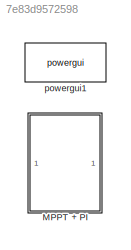
MODEL slx_7e83d9572598
KIND model
CONFIG AbsTol = auto
CONFIG EnableMultiTasking = off
CONFIG FixedStep = (1/150000)/100
CONFIG MaxStep = auto
CONFIG MinStep = auto
CONFIG RelTol = 1e-3
CONFIG SampleTimeConstraint = Unconstrained
CONFIG SolverName = FixedStepDiscrete
CONFIG StartTime = 0
CONFIG StopTime = 0.2
WORKSPACE source: mxarray member
WORKSPACE Var = 20
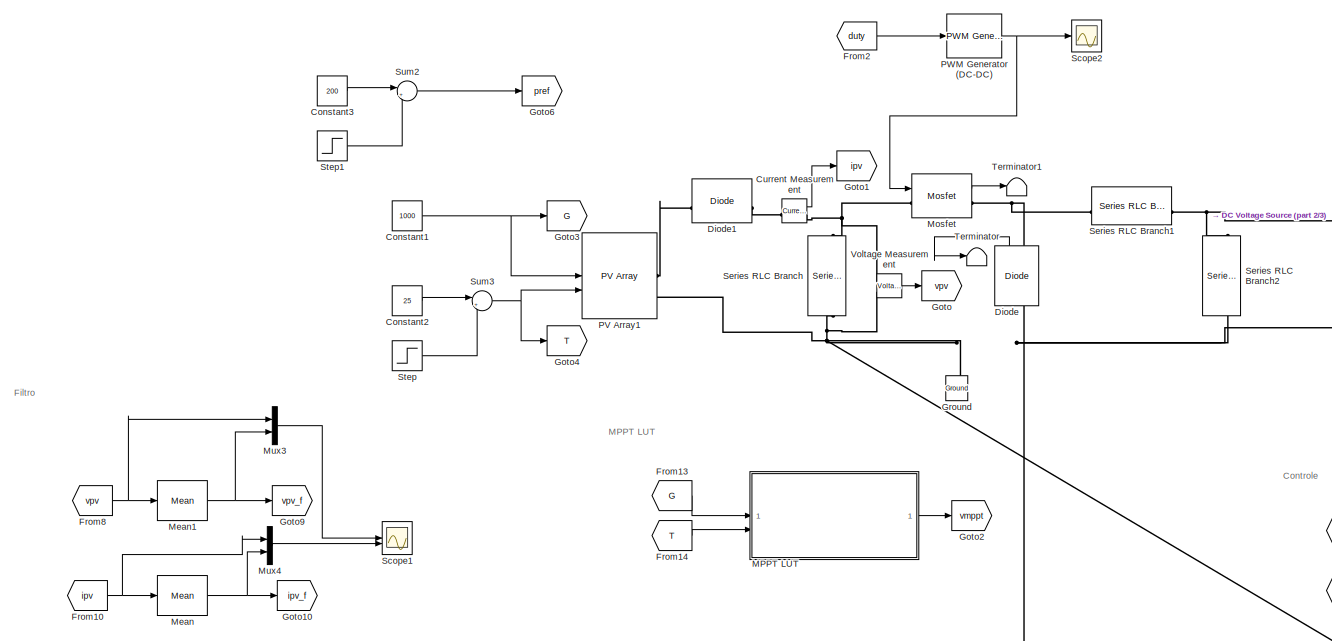
[diagram: MPPT + PI - part 1/3, full width, middle band]
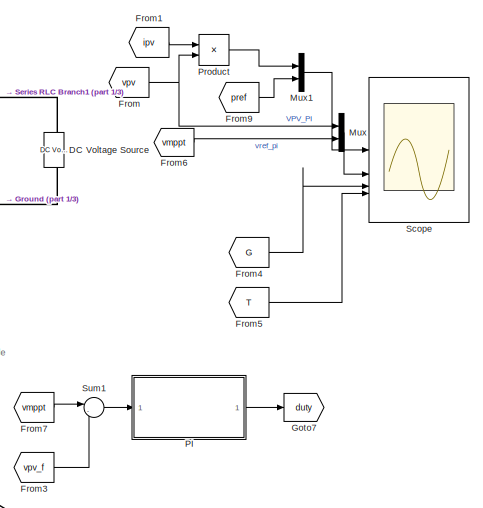
[diagram: MPPT + PI - part 2/3, middle right region]
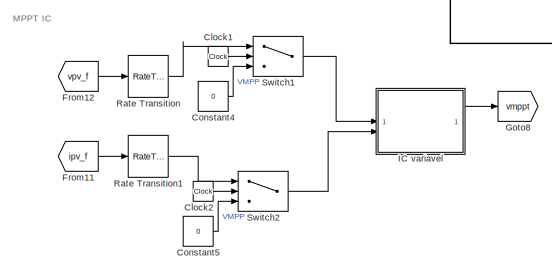
[diagram: MPPT + PI - part 3/3, bottom center region]
BLOCK [SubSystem] MPPT + PI
BLOCK [Clock] MPPT + PI/Clock1
BLOCK [Clock] MPPT + PI/Clock2
BLOCK [Constant] MPPT + PI/Constant1
  Value = 1000
BLOCK [Constant] MPPT + PI/Constant2
  Value = 25
BLOCK [Constant] MPPT + PI/Constant3
  Value = 200
BLOCK [Constant] MPPT + PI/Constant4
  Value = 0
BLOCK [Constant] MPPT + PI/Constant5
  Value = 0
BLOCK [Reference] MPPT + PI/Current Measurement  REF=spsCurrentMeasurementLib/Current Measurement
  SourceBlock = spsCurrentMeasurementLib/Current Measurement
  SourceType = Current Measurement
  UserDataPersistent = on
BLOCK [Reference] MPPT + PI/DC Voltage Source  REF=spsDCVoltageSourceLib/DC Voltage Source
  SourceBlock = spsDCVoltageSourceLib/DC Voltage Source
  SourceType = DC Voltage Source
BLOCK [Reference] MPPT + PI/Diode  REF=spsDiodeLib/Diode
  NameLocation = right
  SourceBlock = spsDiodeLib/Diode
  SourceType = Diode
BLOCK [Reference] MPPT + PI/Diode1  REF=spsDiodeLib/Diode
  SourceBlock = spsDiodeLib/Diode
  SourceType = Diode
BLOCK [From] MPPT + PI/From
  GotoTag = vpv
BLOCK [From] MPPT + PI/From1
  GotoTag = ipv
BLOCK [From] MPPT + PI/From10
  GotoTag = ipv
BLOCK [From] MPPT + PI/From11
  GotoTag = ipv_f
BLOCK [From] MPPT + PI/From12
  GotoTag = vpv_f
BLOCK [From] MPPT + PI/From13
  Commented = on
  GotoTag = G
BLOCK [From] MPPT + PI/From14
  Commented = on
  GotoTag = T
BLOCK [From] MPPT + PI/From2
  GotoTag = duty
BLOCK [From] MPPT + PI/From3
  GotoTag = vpv_f
BLOCK [From] MPPT + PI/From4
  GotoTag = G
BLOCK [From] MPPT + PI/From5
  GotoTag = T
BLOCK [From] MPPT + PI/From6
  GotoTag = vmppt
BLOCK [From] MPPT + PI/From7
  GotoTag = vmppt
BLOCK [From] MPPT + PI/From8
  GotoTag = vpv
BLOCK [From] MPPT + PI/From9
  GotoTag = pref
BLOCK [Goto] MPPT + PI/Goto
  GotoTag = vpv
BLOCK [Goto] MPPT + PI/Goto1
  GotoTag = ipv
BLOCK [Goto] MPPT + PI/Goto10
  GotoTag = ipv_f
BLOCK [Goto] MPPT + PI/Goto2
  Commented = on
  GotoTag = vmppt
BLOCK [Goto] MPPT + PI/Goto3
  GotoTag = G
BLOCK [Goto] MPPT + PI/Goto4
  GotoTag = T
BLOCK [Goto] MPPT + PI/Goto6
  GotoTag = pref
BLOCK [Goto] MPPT + PI/Goto7
  GotoTag = duty
BLOCK [Goto] MPPT + PI/Goto8
  GotoTag = vmppt
BLOCK [Goto] MPPT + PI/Goto9
  GotoTag = vpv_f
BLOCK [Reference] MPPT + PI/Ground  REF=spsGroundLib/Ground
  NameLocation = right
  SourceBlock = spsGroundLib/Ground
  SourceType = Ground
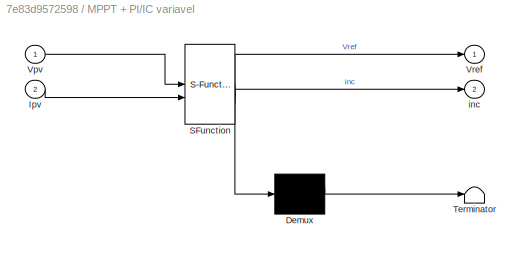
BLOCK [SubSystem] MPPT + PI/IC variavel
  ErrorFcn = Stateflow.Translate.translate
  PermitHierarchicalResolution = ExplicitOnly
  SFBlockType = MATLAB Function
  TreatAsAtomicUnit = on
BLOCK [Demux] MPPT + PI/IC variavel/ Demux 
  Outputs = 1
BLOCK [S-Function] MPPT + PI/IC variavel/ SFunction 
  EnableBusSupport = on
  FunctionName = sf_sfun
  PortCounts = [2 3]
  SFcnIsStateOwnerBlock = off
  SFunctionDeploymentMode = off
  Tag = Stateflow S-Function 12
BLOCK [Terminator] MPPT + PI/IC variavel/ Terminator 
BLOCK [Inport] MPPT + PI/IC variavel/Ipv
  Port = 2
BLOCK [Inport] MPPT + PI/IC variavel/Vpv
BLOCK [Outport] MPPT + PI/IC variavel/Vref
BLOCK [Outport] MPPT + PI/IC variavel/inc
  Port = 2
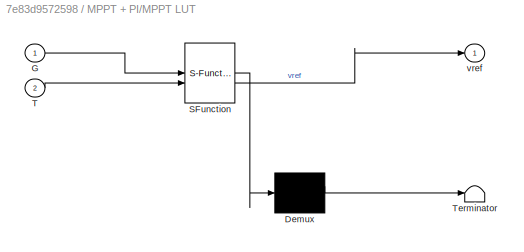
BLOCK [SubSystem] MPPT + PI/MPPT LUT
  Commented = on
  ErrorFcn = Stateflow.Translate.translate
  PermitHierarchicalResolution = ExplicitOnly
  SFBlockType = MATLAB Function
  TreatAsAtomicUnit = on
BLOCK [Demux] MPPT + PI/MPPT LUT/ Demux 
  Outputs = 1
BLOCK [S-Function] MPPT + PI/MPPT LUT/ SFunction 
  EnableBusSupport = on
  FunctionName = sf_sfun
  PortCounts = [2 2]
  SFcnIsStateOwnerBlock = off
  SFunctionDeploymentMode = off
  Tag = Stateflow S-Function 1
BLOCK [Terminator] MPPT + PI/MPPT LUT/ Terminator 
BLOCK [Inport] MPPT + PI/MPPT LUT/G
BLOCK [Inport] MPPT + PI/MPPT LUT/T
  Port = 2
BLOCK [Outport] MPPT + PI/MPPT LUT/vref
BLOCK [Reference] MPPT + PI/Mean  REF=spsMeanLib/Mean
  LibrarySourceBlock = sps_lib/Sensors and Measurements/Mean
  SourceBlock = spsMeanLib/Mean
  SourceType = Mean
BLOCK [Reference] MPPT + PI/Mean1  REF=spsMeanLib/Mean
  LibrarySourceBlock = sps_lib/Sensors and Measurements/Mean
  SourceBlock = spsMeanLib/Mean
  SourceType = Mean
BLOCK [Reference] MPPT + PI/Mosfet  REF=spsMosfetLib/Mosfet
  SourceBlock = spsMosfetLib/Mosfet
  SourceType = Mosfet
BLOCK [Mux] MPPT + PI/Mux
  DisplayOption = bar
  Inputs = 2
BLOCK [Mux] MPPT + PI/Mux1
  DisplayOption = bar
  Inputs = 2
BLOCK [Mux] MPPT + PI/Mux3
  DisplayOption = bar
  Inputs = 2
BLOCK [Mux] MPPT + PI/Mux4
  DisplayOption = bar
  Inputs = 2
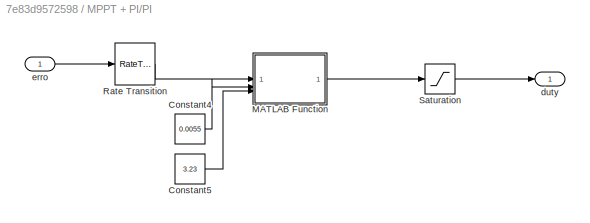
BLOCK [SubSystem] MPPT + PI/PI
BLOCK [Constant] MPPT + PI/PI/Constant4
  Value = 0.0055
BLOCK [Constant] MPPT + PI/PI/Constant5
  Value = 3.23
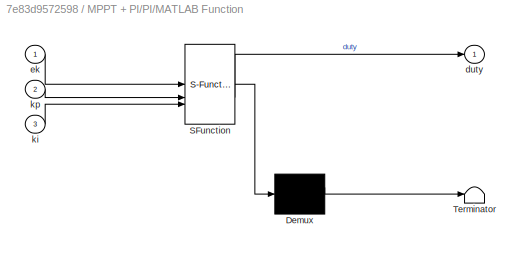
BLOCK [SubSystem] MPPT + PI/PI/MATLAB Function
  ErrorFcn = Stateflow.Translate.translate
  PermitHierarchicalResolution = ExplicitOnly
  SFBlockType = MATLAB Function
  TreatAsAtomicUnit = on
BLOCK [Demux] MPPT + PI/PI/MATLAB Function/ Demux 
  Outputs = 1
BLOCK [S-Function] MPPT + PI/PI/MATLAB Function/ SFunction 
  EnableBusSupport = on
  FunctionName = sf_sfun
  PortCounts = [3 2]
  SFcnIsStateOwnerBlock = off
  SFunctionDeploymentMode = off
  Tag = Stateflow S-Function 4
BLOCK [Terminator] MPPT + PI/PI/MATLAB Function/ Terminator 
BLOCK [Outport] MPPT + PI/PI/MATLAB Function/duty
BLOCK [Inport] MPPT + PI/PI/MATLAB Function/ek
BLOCK [Inport] MPPT + PI/PI/MATLAB Function/ki
  Port = 3
BLOCK [Inport] MPPT + PI/PI/MATLAB Function/kp
  Port = 2
BLOCK [RateTransition] MPPT + PI/PI/Rate Transition
  OutPortSampleTime = 1/150000
BLOCK [Saturate] MPPT + PI/PI/Saturation
  LowerLimit = 0
  UpperLimit = 1
BLOCK [Outport] MPPT + PI/PI/duty
BLOCK [Inport] MPPT + PI/PI/erro
BLOCK [Reference] MPPT + PI/PV Array1  REF=spsPVArrayLib/PV Array
  SourceBlock = spsPVArrayLib/PV Array
  SourceType = PV array
BLOCK [Reference] MPPT + PI/PWM Generator (DC-DC)  REF=spsPWMGeneratorDCDCLib/PWM Generator
(DC-DC)
  SourceBlock = spsPWMGeneratorDCDCLib/PWM Generator\n(DC-DC)
  SourceType = PWM Generator (DC-DC)
BLOCK [Product] MPPT + PI/Product
BLOCK [RateTransition] MPPT + PI/Rate Transition
  OutPortSampleTime = 30e-3
BLOCK [RateTransition] MPPT + PI/Rate Transition1
  OutPortSampleTime = 30e-3
BLOCK [Scope] MPPT + PI/Scope
  Floating = off
  NumInputPorts = 4
  ScopeSpecificationString = Simulink.scopes.TimeScopeBlockCfg('CurrentConfiguration', extmgr.ConfigurationSet(extmgr.Configuration('Core','General UI',true),extmgr.Configuration('Core','Source UI',true),extmgr.Configuration('Sources','WiredSimulink',true),extmgr.Configuration('Visuals','Time Domain',true,'SerializedDisplays',{struct('MinYLimReal','-24.40865','MaxYLimReal','233.17179','YLabelReal','','MinYLimMag','0.00000','M...<+4208ch>
BLOCK [Scope] MPPT + PI/Scope1
  Floating = off
  NumInputPorts = 2
  ScopeSpecificationString = Simulink.scopes.TimeScopeBlockCfg('CurrentConfiguration', extmgr.ConfigurationSet(extmgr.Configuration('Core','General UI',true),extmgr.Configuration('Core','Source UI',true),extmgr.Configuration('Sources','WiredSimulink',true,'DataLoggingVariableName','ScopeData2'),extmgr.Configuration('Visuals','Time Domain',true,'SerializedDisplays',{struct('MinYLimReal','37.05258','MaxYLimReal','37.34499','YLa...<+2223ch>
BLOCK [Scope] MPPT + PI/Scope2
  Floating = off
  NumInputPorts = 1
  ScopeSpecificationString = Simulink.scopes.TimeScopeBlockCfg('CurrentConfiguration', extmgr.ConfigurationSet(extmgr.Configuration('Core','General UI',true),extmgr.Configuration('Core','Source UI',true),extmgr.Configuration('Sources','WiredSimulink',true,'DataLoggingVariableName','ScopeData1'),extmgr.Configuration('Visuals','Time Domain',true,'SerializedDisplays',{struct('MinYLimReal','-0.125','MaxYLimReal','1.125','YLabelRe...<+1749ch>
BLOCK [Reference] MPPT + PI/Series RLC Branch  REF=spsSeriesRLCBranchLib/Series RLC Branch
  NameLocation = left
  SourceBlock = spsSeriesRLCBranchLib/Series RLC Branch
  SourceType = Series RLC Branch
BLOCK [Reference] MPPT + PI/Series RLC Branch1  REF=spsSeriesRLCBranchLib/Series RLC Branch
  SourceBlock = spsSeriesRLCBranchLib/Series RLC Branch
  SourceType = Series RLC Branch
BLOCK [Reference] MPPT + PI/Series RLC Branch2  REF=spsSeriesRLCBranchLib/Series RLC Branch
  NameLocation = left
  SourceBlock = spsSeriesRLCBranchLib/Series RLC Branch
  SourceType = Series RLC Branch
BLOCK [Step] MPPT + PI/Step
  After = -10
  SampleTime = 0
  Time = 0.1
BLOCK [Step] MPPT + PI/Step1
  After = 7
  SampleTime = 0
  Time = 0.1
BLOCK [Sum] MPPT + PI/Sum1
  Inputs = |-+
BLOCK [Sum] MPPT + PI/Sum2
  Inputs = |++
BLOCK [Sum] MPPT + PI/Sum3
  Inputs = |++
BLOCK [Switch] MPPT + PI/Switch1
  Criteria = u2 > Threshold
  InputSameDT = off
  SaturateOnIntegerOverflow = off
  Threshold = 0.1
BLOCK [Switch] MPPT + PI/Switch2
  Criteria = u2 > Threshold
  InputSameDT = off
  SaturateOnIntegerOverflow = off
  Threshold = 0.1
BLOCK [Terminator] MPPT + PI/Terminator
BLOCK [Terminator] MPPT + PI/Terminator1
BLOCK [Reference] MPPT + PI/Voltage Measurement  REF=spsVoltageMeasurementLib/Voltage Measurement
  SourceBlock = spsVoltageMeasurementLib/Voltage Measurement
  SourceType = Voltage Measurement
  UserDataPersistent = on
BLOCK [Reference] powergui1  REF=spspowerguiLib/powergui
  Priority = 1
  SourceBlock = spspowerguiLib/powergui
  SourceType = PSB option menu block
ANNOTATION MPPT + PI: Controle
ANNOTATION MPPT + PI: Filtro
ANNOTATION MPPT + PI: MPPT IC
ANNOTATION MPPT + PI: MPPT LUT
LINE MPPT + PI/Clock1:1 -> MPPT + PI/Switch1:2
LINE MPPT + PI/Clock2:1 -> MPPT + PI/Switch2:2
NET MPPT + PI/Constant1:1 -> MPPT + PI/Goto3:1, MPPT + PI/PV Array1:1
LINE MPPT + PI/Constant2:1 -> MPPT + PI/Sum3:1
LINE MPPT + PI/Constant3:1 -> MPPT + PI/Sum2:1
LINE MPPT + PI/Constant4:1 -> MPPT + PI/Switch1:3
LINE MPPT + PI/Constant5:1 -> MPPT + PI/Switch2:3
LINE MPPT + PI/Current Measurement:1 -> MPPT + PI/Goto1:1
LINE MPPT + PI/Diode:1 -> MPPT + PI/Terminator:1
NET MPPT + PI/From10:1 -> MPPT + PI/Mean:1, MPPT + PI/Mux4:1
LINE MPPT + PI/From11:1 -> MPPT + PI/Rate Transition1:1
LINE MPPT + PI/From12:1 -> MPPT + PI/Rate Transition:1
LINE MPPT + PI/From13:1 -> MPPT + PI/MPPT LUT:1
LINE MPPT + PI/From14:1 -> MPPT + PI/MPPT LUT:2
LINE MPPT + PI/From1:1 -> MPPT + PI/Product:1
LINE MPPT + PI/From2:1 -> MPPT + PI/PWM Generator (DC-DC):1
LINE MPPT + PI/From3:1 -> MPPT + PI/Sum1:2
LINE MPPT + PI/From4:1 -> MPPT + PI/Scope:3
LINE MPPT + PI/From5:1 -> MPPT + PI/Scope:4
LINE MPPT + PI/From6:1 -> MPPT + PI/Mux:2
LINE MPPT + PI/From7:1 -> MPPT + PI/Sum1:1
NET MPPT + PI/From8:1 -> MPPT + PI/Mean1:1, MPPT + PI/Mux3:1
LINE MPPT + PI/From9:1 -> MPPT + PI/Mux1:2
NET MPPT + PI/From:1 -> MPPT + PI/Mux:1, MPPT + PI/Product:2
LINE MPPT + PI/IC variavel:1 -> MPPT + PI/Goto8:1
LINE MPPT + PI/MPPT LUT:1 -> MPPT + PI/Goto2:1
NET MPPT + PI/Mean1:1 -> MPPT + PI/Goto9:1, MPPT + PI/Mux3:2
NET MPPT + PI/Mean:1 -> MPPT + PI/Goto10:1, MPPT + PI/Mux4:2
LINE MPPT + PI/Mosfet:1 -> MPPT + PI/Terminator1:1
LINE MPPT + PI/Mux1:1 -> MPPT + PI/Scope:1
LINE MPPT + PI/Mux3:1 -> MPPT + PI/Scope1:1
LINE MPPT + PI/Mux4:1 -> MPPT + PI/Scope1:2
LINE MPPT + PI/Mux:1 -> MPPT + PI/Scope:2
LINE MPPT + PI/PI/Constant4:1 -> MPPT + PI/PI/MATLAB Function:2
LINE MPPT + PI/PI/Constant5:1 -> MPPT + PI/PI/MATLAB Function:3
LINE MPPT + PI/PI/MATLAB Function:1 -> MPPT + PI/PI/Saturation:1
LINE MPPT + PI/PI/Rate Transition:1 -> MPPT + PI/PI/MATLAB Function:1
LINE MPPT + PI/PI/Saturation:1 -> MPPT + PI/PI/duty:1
LINE MPPT + PI/PI/erro:1 -> MPPT + PI/PI/Rate Transition:1
LINE MPPT + PI/PI:1 -> MPPT + PI/Goto7:1
NET MPPT + PI/PWM Generator (DC-DC):1 -> MPPT + PI/Mosfet:1, MPPT + PI/Scope2:1
LINE MPPT + PI/Product:1 -> MPPT + PI/Mux1:1
LINE MPPT + PI/Rate Transition1:1 -> MPPT + PI/Switch2:1
LINE MPPT + PI/Rate Transition:1 -> MPPT + PI/Switch1:1
LINE MPPT + PI/Step1:1 -> MPPT + PI/Sum2:2
LINE MPPT + PI/Step:1 -> MPPT + PI/Sum3:2
LINE MPPT + PI/Sum1:1 -> MPPT + PI/PI:1
LINE MPPT + PI/Sum2:1 -> MPPT + PI/Goto6:1
NET MPPT + PI/Sum3:1 -> MPPT + PI/Goto4:1, MPPT + PI/PV Array1:2
LINE MPPT + PI/Switch1:1 -> MPPT + PI/IC variavel:1
LINE MPPT + PI/Switch2:1 -> MPPT + PI/IC variavel:2
LINE MPPT + PI/Voltage Measurement:1 -> MPPT + PI/Goto:1
PLINE MPPT + PI/Current Measurement:LConn1 -- MPPT + PI/Diode1:RConn1
PNET net1: MPPT + PI/Current Measurement:RConn1 -- MPPT + PI/Mosfet:LConn1 -- MPPT + PI/Series RLC Branch:LConn1 -- MPPT + PI/Voltage Measurement:LConn1
PNET net2: MPPT + PI/DC Voltage Source:LConn1 -- MPPT + PI/Diode:LConn1 -- MPPT + PI/Ground:LConn1 -- MPPT + PI/PV Array1:RConn2 -- MPPT + PI/Series RLC Branch2:RConn1 -- MPPT + PI/Series RLC Branch:RConn1 -- MPPT + PI/Voltage Measurement:LConn2
PNET net3: MPPT + PI/DC Voltage Source:RConn1 -- MPPT + PI/Series RLC Branch1:RConn1 -- MPPT + PI/Series RLC Branch2:LConn1
PLINE MPPT + PI/Diode1:LConn1 -- MPPT + PI/PV Array1:RConn1
PNET net4: MPPT + PI/Diode:RConn1 -- MPPT + PI/Mosfet:RConn1 -- MPPT + PI/Series RLC Branch1:LConn1
note: NET lines group one-source signal fan-out (src -> all destinations, sorted); 1:1 wires keep LINE; PNET lines group multi-terminal physical nets as a canonical sorted terminal list (undirected conserving connections); 2-terminal nets keep the pairwise PLINE form
CHART MPPT + PI/PI/MATLAB Function states=1 transitions=1
  STATE_LABEL 'eML_blk_kernel()'
  STATE_LABEL 'SCRIPT:\nfunction duty = fcn(ek, kp, ki)\n\npersistent uk_1 ek_1\n\nif(isempty(uk_1)) uk_1=0; end\nif(isempty(ek_1)) ek_1=0; end\n\nTs = (1/150e3);\nA = kp + (ki*Ts/2);\nB = kp - (ki*Ts/2);\n\nu_PI = A*ek - B*ek_1 + uk_1;\n\nek_1 = ek;\nuk_1 = u_PI;\n\nduty = u_PI;\n'
CHART MPPT + PI/IC variavel states=1 transitions=1
  STATE_LABEL 'eML_blk_kernel()'
  STATE_LABEL 'SCRIPT:\n%MPPT Condutância Incremental com Passo Variável\nfunction [Vref, inc]= f(Vpv, Ipv)\nVref_ini = 26.3; %tensão de referência inicial\nk=0.1; %fator de incremento de vref\n\npersistent Vpva Vrefa Ipva;\n\nif isempty(Vpva) %testa se as variáveis ainda não foram inicializadas\n Vpva=0;\n Ipva=0;\n Vrefa=Vref_ini;\nend\n\ndV = Vpv - Vpva; %variação de tensão\ndI = Ipv - Ipva; %variação de corrente\ndP = (Vpv*...<+361ch>'
CHART MPPT + PI/MPPT LUT states=1 transitions=1
  STATE_LABEL 'eML_blk_kernel()'
  STATE_LABEL 'SCRIPT:\nfunction vref = fcn(G, T)\n\n    persistent V_MPP V_MPP_aux P_MPP vpv;\n\n    if(isempty(V_MPP)); V_MPP = 25; end\n    if(isempty(V_MPP_aux)); V_MPP_aux = 0; end\n    if(isempty(P_MPP)); P_MPP = 159.543; end\n    if(isempty(vpv)); vpv = 0.1; end\n\n    ipv = ipv_f(G, T, vpv);\n\n    if(ipv<0); ipv = 0; end\n    ppv = vpv*ipv\n\n    if(ppv > P_MPP)\n        V_MPP_aux = vpv;\n        P_MPP = ppv;\n    end\n  ...<+137ch>'
CHART  states=0 transitions=0
CHART  states=0 transitions=0
CHART  states=0 transitions=0
